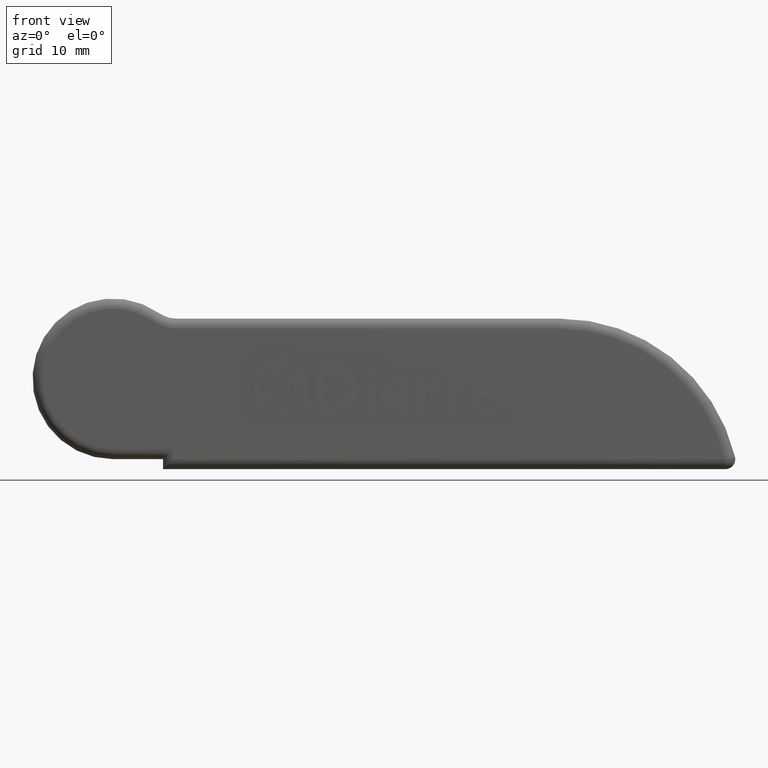
[diagram: clean part render]
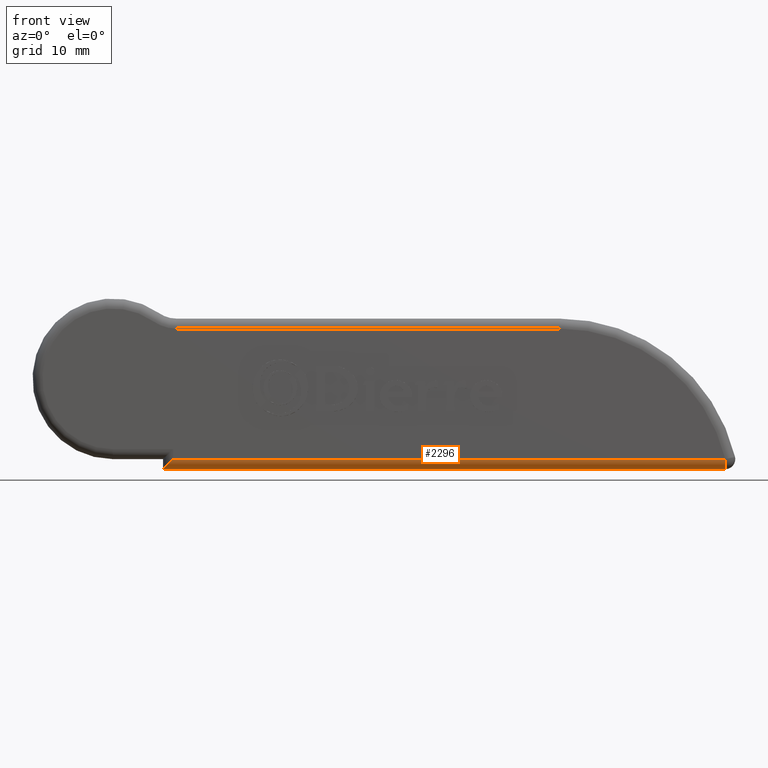
[diagram: same view with one face highlighted and labeled with its STEP entity id]
A machine part, front view. The second image highlights one B-rep face of the part: STEP entity #2296.
In plain terms, the highlighted cylindrical surface (edge-blend (fillet) strip) has radius 1 mm, axis along (1, 0, -0).
Its self-contained STEP definition (entity closure, byte-faithful):
#28=ELLIPSE('',#2417,1.4142135623731,1.);
#30=CYLINDRICAL_SURFACE('',#2415,1.);
#43=CIRCLE('',#2416,0.999999999999999);
#304=FACE_OUTER_BOUND('',#453,.T.);
#453=EDGE_LOOP('',(#1921,#1922,#1923,#1924));
#650=LINE('',#4325,#861);
#654=LINE('',#4342,#865);
#861=VECTOR('',#2740,10.);
#865=VECTOR('',#2756,10.);
#1076=VERTEX_POINT('',#4323);
#1077=VERTEX_POINT('',#4324);
#1083=VERTEX_POINT('',#4340);
#1084=VERTEX_POINT('',#4341);
#1367=EDGE_CURVE('',#1076,#1077,#650,.T.);
#1374=EDGE_CURVE('',#1083,#1084,#654,.T.);
#1375=EDGE_CURVE('',#1084,#1076,#43,.T.);
#1376=EDGE_CURVE('',#1077,#1083,#28,.T.);
#1921=ORIENTED_EDGE('',*,*,#1374,.T.);
#1922=ORIENTED_EDGE('',*,*,#1375,.T.);
#1923=ORIENTED_EDGE('',*,*,#1367,.T.);
#1924=ORIENTED_EDGE('',*,*,#1376,.T.);
#2296=ADVANCED_FACE('',(#304),#30,.T.);
#2415=AXIS2_PLACEMENT_3D('',#4339,#2754,#2755);
#2416=AXIS2_PLACEMENT_3D('',#4343,#2757,#2758);
#2417=AXIS2_PLACEMENT_3D('',#4344,#2759,#2760);
#2740=DIRECTION('',(-1.,0.,9.91270557701032E-17));
#2754=DIRECTION('center_axis',(1.,0.,-9.91270557701033E-17));
#2755=DIRECTION('ref_axis',(0.,-0.707106781186548,-0.707106781186547));
#2756=DIRECTION('',(1.,0.,-9.91270557701032E-17));
#2757=DIRECTION('center_axis',(-1.,0.,0.));
#2758=DIRECTION('ref_axis',(0.,0.,-1.));
#2759=DIRECTION('center_axis',(0.707106781186547,0.,-0.707106781186548));
#2760=DIRECTION('ref_axis',(-0.707106781186548,0.,-0.707106781186547));
#4323=CARTESIAN_POINT('',(61.,-1.5,-8.00000000000003));
#4324=CARTESIAN_POINT('',(6.,-1.5,-8.00000000000002));
#4325=CARTESIAN_POINT('',(43.8353080849117,-1.5,-8.00000000000002));
#4339=CARTESIAN_POINT('Origin',(43.8353080849117,-0.5,-8.00000000000002));
#4340=CARTESIAN_POINT('',(5.,-0.5,-9.00000000000002));
#4341=CARTESIAN_POINT('',(61.,-0.5,-9.00000000000002));
#4342=CARTESIAN_POINT('',(43.8353080849117,-0.5,-9.00000000000002));
#4343=CARTESIAN_POINT('Origin',(61.,-0.5,-8.00000000000003));
#4344=CARTESIAN_POINT('Origin',(6.,-0.5,-8.00000000000002));